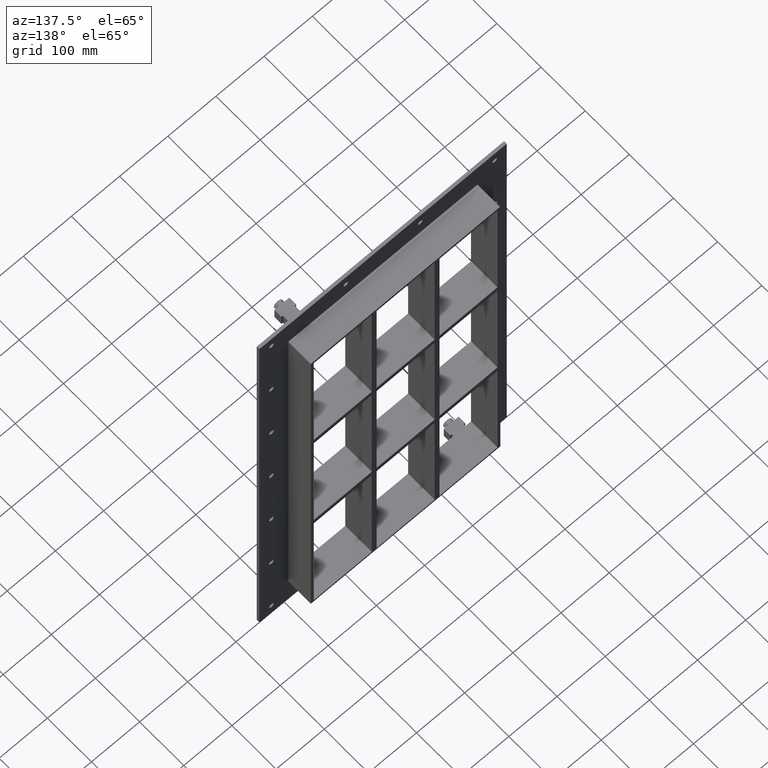
[diagram: clean part render]
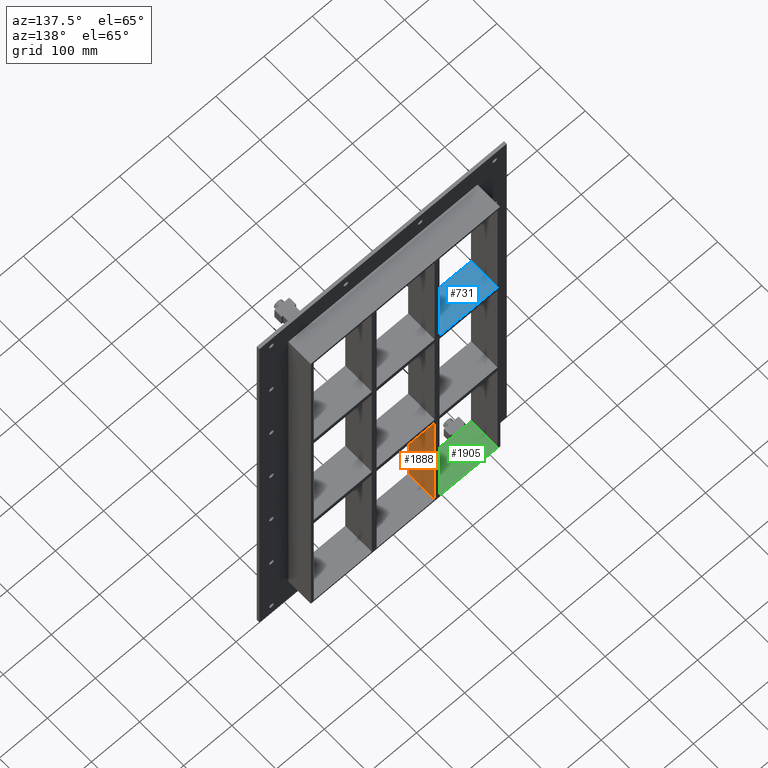
[diagram: same view with three faces highlighted in distinct colors, each labeled with its STEP entity id]
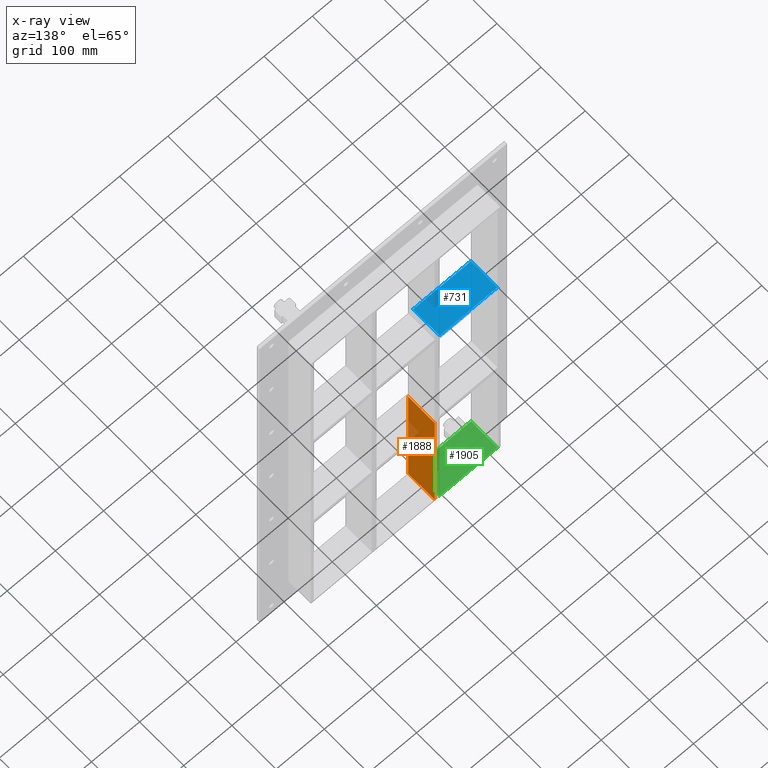
[diagram: x-ray of the same camera — body ghosted, the three highlighted faces saturated]
A machine part, auxiliary view with three faces highlighted in distinct colors.
The next image is the same camera in x-ray (body ghosted, the three faces saturated) — at least one of them is partly hidden behind the body in this view.
Their STEP definitions:

[orange] entity #1888 — the highlighted planar face has unit normal (1, 0, 0).
#1244=CARTESIAN_POINT('',(-60.249999999996362,57.0,-151.00000000001137));
#1245=VERTEX_POINT('',#1244);
#1252=CARTESIAN_POINT('',(-60.249999999996362,57.0,-428.9999999999817));
#1253=VERTEX_POINT('',#1252);
#1254=CARTESIAN_POINT('',(-60.249999999996362,57.0,-151.00000000001143));
#1255=DIRECTION('',(0.0,0.0,-1.0));
#1256=VECTOR('',#1255,277.99999999997033);
#1257=LINE('',#1254,#1256);
#1258=EDGE_CURVE('',#1245,#1253,#1257,.T.);
#1431=CARTESIAN_POINT('',(-60.249999999996362,-3.0,-428.9999999999817));
#1432=VERTEX_POINT('',#1431);
#1433=CARTESIAN_POINT('',(-60.249999999996362,57.000000000000007,-429.00000000000006));
#1434=DIRECTION('',(0.0,-1.0,0.0));
#1435=VECTOR('',#1434,60.000000000000007);
#1436=LINE('',#1433,#1435);
#1437=EDGE_CURVE('',#1253,#1432,#1436,.T.);
#1628=CARTESIAN_POINT('',(-60.249999999996362,-3.0,-151.00000000001137));
#1629=VERTEX_POINT('',#1628);
#1630=CARTESIAN_POINT('',(-60.249999999996362,-3.0,-151.00000000001143));
#1631=DIRECTION('',(0.0,0.0,-1.0));
#1632=VECTOR('',#1631,277.99999999997033);
#1633=LINE('',#1630,#1632);
#1634=EDGE_CURVE('',#1629,#1432,#1633,.T.);
#1758=CARTESIAN_POINT('',(-60.249999999996369,57.0,-151.00000000001137));
#1759=DIRECTION('',(0.0,-1.0,0.0));
#1760=VECTOR('',#1759,60.0);
#1761=LINE('',#1758,#1760);
#1762=EDGE_CURVE('',#1245,#1629,#1761,.T.);
#1877=CARTESIAN_POINT('',(-60.249999999996362,-3.0,429.00000000000006));
#1878=DIRECTION('',(1.0,0.0,0.0));
#1879=DIRECTION('',(0.0,0.0,-1.0));
#1880=AXIS2_PLACEMENT_3D('',#1877,#1878,#1879);
#1881=PLANE('',#1880);
#1882=ORIENTED_EDGE('',*,*,#1762,.T.);
#1883=ORIENTED_EDGE('',*,*,#1634,.T.);
#1884=ORIENTED_EDGE('',*,*,#1437,.F.);
#1885=ORIENTED_EDGE('',*,*,#1258,.F.);
#1886=EDGE_LOOP('',(#1882,#1883,#1884,#1885));
#1887=FACE_OUTER_BOUND('',#1886,.T.);
#1888=ADVANCED_FACE('',(#1887),#1881,.T.);

[blue] entity #731 — the highlighted planar face has unit normal (0, 0, 1).
#692=CARTESIAN_POINT('',(-190.74999999999872,-3.0,151.00000000000023));
#693=DIRECTION('',(0.0,0.0,1.0));
#694=DIRECTION('',(1.0,0.0,0.0));
#695=AXIS2_PLACEMENT_3D('',#692,#693,#694);
#696=PLANE('',#695);
#697=CARTESIAN_POINT('',(-70.250000000000369,57.0,151.00000000000023));
#698=VERTEX_POINT('',#697);
#699=CARTESIAN_POINT('',(-70.250000000000369,-3.0,151.00000000000023));
#700=VERTEX_POINT('',#699);
#701=CARTESIAN_POINT('',(-70.250000000000369,57.0,151.00000000000023));
#702=DIRECTION('',(0.0,-1.0,0.0));
#703=VECTOR('',#702,60.0);
#704=LINE('',#701,#703);
#705=EDGE_CURVE('',#698,#700,#704,.T.);
#706=ORIENTED_EDGE('',*,*,#705,.F.);
#707=CARTESIAN_POINT('',(-190.74999999999872,57.0,151.00000000000023));
#708=VERTEX_POINT('',#707);
#709=CARTESIAN_POINT('',(-190.74999999999872,57.0,151.00000000000023));
#710=DIRECTION('',(1.0,0.0,0.0));
#711=VECTOR('',#710,120.49999999999834);
#712=LINE('',#709,#711);
#713=EDGE_CURVE('',#708,#698,#712,.T.);
#714=ORIENTED_EDGE('',*,*,#713,.F.);
#715=CARTESIAN_POINT('',(-190.74999999999872,-3.0,151.00000000000023));
#716=VERTEX_POINT('',#715);
#717=CARTESIAN_POINT('',(-190.75000000000003,-3.0,151.00000000000023));
#718=DIRECTION('',(0.0,1.0,0.0));
#719=VECTOR('',#718,60.000000000000007);
#720=LINE('',#717,#719);
#721=EDGE_CURVE('',#716,#708,#720,.T.);
#722=ORIENTED_EDGE('',*,*,#721,.F.);
#723=CARTESIAN_POINT('',(-190.74999999999872,-3.0,151.00000000000023));
#724=DIRECTION('',(1.0,0.0,0.0));
#725=VECTOR('',#724,120.49999999999834);
#726=LINE('',#723,#725);
#727=EDGE_CURVE('',#716,#700,#726,.T.);
#728=ORIENTED_EDGE('',*,*,#727,.T.);
#729=EDGE_LOOP('',(#706,#714,#722,#728));
#730=FACE_OUTER_BOUND('',#729,.T.);
#731=ADVANCED_FACE('',(#730),#696,.T.);

[green] entity #1905 — the highlighted planar face has unit normal (0, 0, -1).
#1202=CARTESIAN_POINT('',(-190.75000000000003,57.0,-429.00000000000006));
#1203=VERTEX_POINT('',#1202);
#1210=CARTESIAN_POINT('',(-70.25000000000027,57.0,-429.00000000000006));
#1211=VERTEX_POINT('',#1210);
#1212=CARTESIAN_POINT('',(-190.75000000000006,57.0,-429.00000000000006));
#1213=DIRECTION('',(1.0,0.0,0.0));
#1214=VECTOR('',#1213,120.49999999999979);
#1215=LINE('',#1212,#1214);
#1216=EDGE_CURVE('',#1203,#1211,#1215,.T.);
#1673=CARTESIAN_POINT('',(-70.25000000000027,-3.0,-429.00000000000006));
#1674=VERTEX_POINT('',#1673);
#1681=CARTESIAN_POINT('',(-190.75000000000003,-3.0,-429.00000000000006));
#1682=VERTEX_POINT('',#1681);
#1683=CARTESIAN_POINT('',(-70.25000000000027,-3.0,-429.00000000000006));
#1684=DIRECTION('',(-1.0,0.0,0.0));
#1685=VECTOR('',#1684,120.49999999999979);
#1686=LINE('',#1683,#1685);
#1687=EDGE_CURVE('',#1674,#1682,#1686,.T.);
#1867=CARTESIAN_POINT('',(-70.25000000000027,-3.0,-429.00000000000006));
#1868=DIRECTION('',(0.0,1.0,0.0));
#1869=VECTOR('',#1868,60.000000000000007);
#1870=LINE('',#1867,#1869);
#1871=EDGE_CURVE('',#1674,#1211,#1870,.T.);
#1889=CARTESIAN_POINT('',(190.75000000000003,0.0,-429.00000000000006));
#1890=DIRECTION('',(0.0,0.0,-1.0));
#1891=DIRECTION('',(-1.0,0.0,0.0));
#1892=AXIS2_PLACEMENT_3D('',#1889,#1890,#1891);
#1893=PLANE('',#1892);
#1894=ORIENTED_EDGE('',*,*,#1871,.T.);
#1895=ORIENTED_EDGE('',*,*,#1216,.F.);
#1896=CARTESIAN_POINT('',(-190.75000000000003,-3.0,-429.00000000000006));
#1897=DIRECTION('',(0.0,1.0,0.0));
#1898=VECTOR('',#1897,60.0);
#1899=LINE('',#1896,#1898);
#1900=EDGE_CURVE('',#1682,#1203,#1899,.T.);
#1901=ORIENTED_EDGE('',*,*,#1900,.F.);
#1902=ORIENTED_EDGE('',*,*,#1687,.F.);
#1903=EDGE_LOOP('',(#1894,#1895,#1901,#1902));
#1904=FACE_OUTER_BOUND('',#1903,.T.);
#1905=ADVANCED_FACE('',(#1904),#1893,.F.);